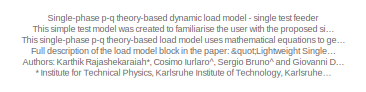
[diagram: root canvas - part 1/3, top left region]
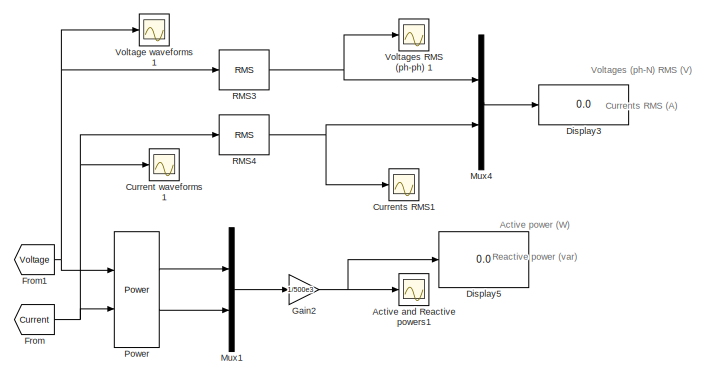
[diagram: root canvas - part 2/3, middle right region]
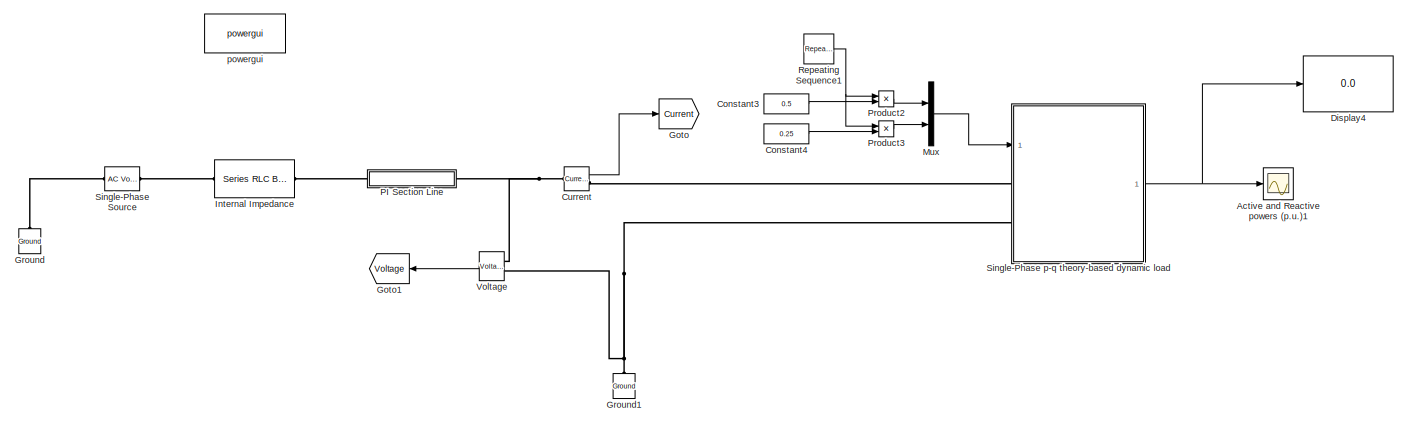
[diagram: root canvas - part 3/3, bottom left region]
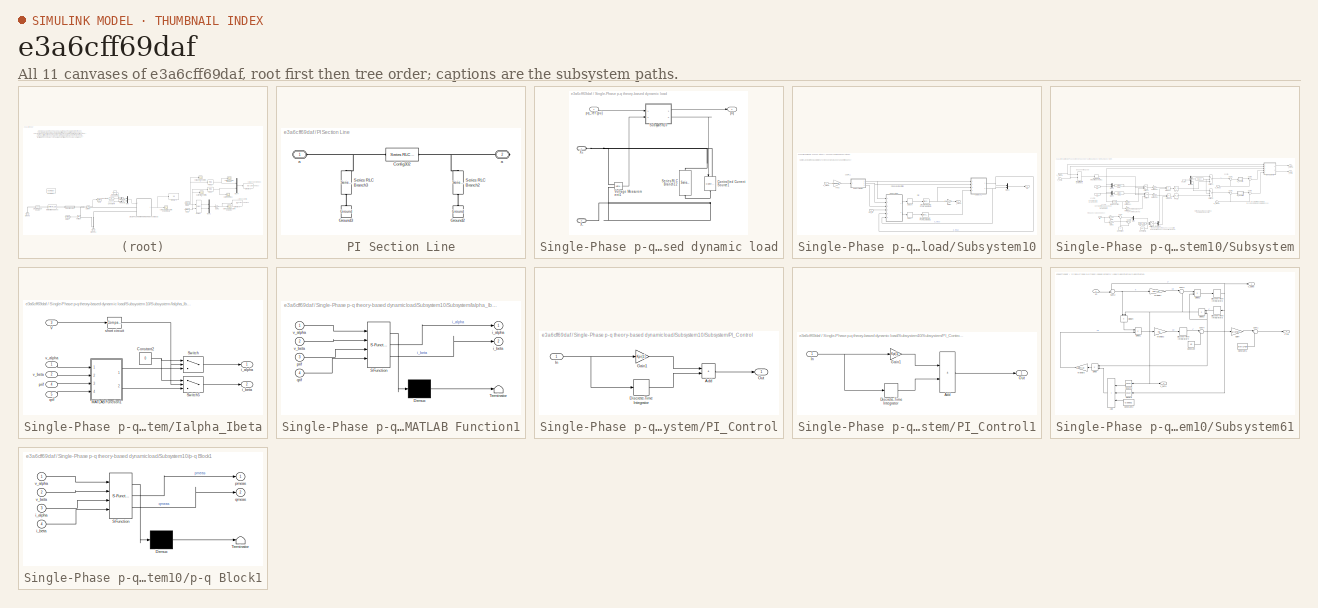
[diagram: thumbnail index - all 11 canvases of the model, root first then tree order]
MODEL slx_e3a6cff69daf
KIND model
CONFIG AbsTol = auto
CONFIG EnableMultiTasking = on
CONFIG FixedStep = 50e-6
CONFIG InitFcn = Ts = 50e-6; %time step
CONFIG MaxStep = auto
CONFIG MinStep = auto
CONFIG RelTol = 1e-3
CONFIG SampleTimeConstraint = Unconstrained
CONFIG SolverName = ode4
CONFIG StartTime = 0.0
CONFIG StopTime = 20
BLOCK [Scope] Active and Reactive powers (p.u.)1
  Floating = off
  NumInputPorts = 1
  Ports = [1]
  ScopeSpecificationString = Simulink.scopes.TimeScopeBlockCfg('CurrentConfiguration', extmgr.ConfigurationSet(extmgr.Configuration('Core','General UI',true),extmgr.Configuration('Core','Source UI',true),extmgr.Configuration('Sources','WiredSimulink',true,'DataLoggingVariableName','ScopeData1'),extmgr.Configuration('Visuals','Time Domain',true,'SerializedDisplays',{struct('MinYLimReal','-0.06887','MaxYLimReal','0.61923','YLab...<+1522ch>
BLOCK [Scope] Active and Reactive powers1
  Floating = off
  NumInputPorts = 1
  Ports = [1]
  ScopeSpecificationString = Simulink.scopes.TimeScopeBlockCfg('CurrentConfiguration', extmgr.ConfigurationSet(extmgr.Configuration('Core','General UI',true),extmgr.Configuration('Core','Source UI',true),extmgr.Configuration('Sources','WiredSimulink',true,'DataLoggingVariableName','ScopeData6'),extmgr.Configuration('Visuals','Time Domain',true,'SerializedDisplays',{struct('MinYLimReal','-0.06887','MaxYLimReal','0.61923','YLab...<+1450ch>
BLOCK [Constant] Constant3
  Value = 0.5
BLOCK [Constant] Constant4
  Value = 0.25
BLOCK [Reference] Current  REF=spsCurrentMeasurementLib/Current Measurement
  Ports = [0, 1, 0, 0, 0, 1, 1]
  SourceBlock = spsCurrentMeasurementLib/Current Measurement
  SourceProductBaseCode = PS
  SourceType = Current Measurement
  UserDataPersistent = on
BLOCK [Scope] Current waveforms1
  Floating = off
  NumInputPorts = 1
  Ports = [1]
  ScopeSpecificationString = Simulink.scopes.TimeScopeBlockCfg('CurrentConfiguration', extmgr.ConfigurationSet(extmgr.Configuration('Core','General UI',true),extmgr.Configuration('Core','Source UI',true),extmgr.Configuration('Sources','WiredSimulink',true,'DataLoggingVariableName','ScopeData2'),extmgr.Configuration('Visuals','Time Domain',true,'SerializedDisplays',{struct('MinYLimReal','-71.44279','MaxYLimReal','342.32777','Y...<+1376ch>
BLOCK [Scope] Currents RMS1
  Floating = off
  NumInputPorts = 1
  Ports = [1]
  ScopeSpecificationString = Simulink.scopes.TimeScopeBlockCfg('CurrentConfiguration', extmgr.ConfigurationSet(extmgr.Configuration('Core','General UI',true),extmgr.Configuration('Core','Source UI',true),extmgr.Configuration('Sources','WiredSimulink',true,'DataLoggingVariableName','ScopeData3'),extmgr.Configuration('Visuals','Time Domain',true,'SerializedDisplays',{struct('MinYLimReal','-6.88329','MaxYLimReal','61.9496','YLab...<+1437ch>
BLOCK [Display] Display3
  Decimation = 1
  Ports = [1]
BLOCK [Display] Display4
  Decimation = 1
  Ports = [1]
BLOCK [Display] Display5
  Decimation = 1
  Ports = [1]
BLOCK [From] From
  GotoTag = Current
BLOCK [From] From1
  GotoTag = Voltage
  NameLocation = top
BLOCK [Gain] Gain2
  Gain = 1/500e3
BLOCK [Goto] Goto
  GotoTag = Current
BLOCK [Goto] Goto1
  GotoTag = Voltage
  NameLocation = top
BLOCK [Reference] Ground  REF=spsGroundLib/Ground
  NameLocation = right
  Ports = [0, 0, 0, 0, 0, 1]
  SourceBlock = spsGroundLib/Ground
  SourceProductBaseCode = PS
  SourceType = Ground
BLOCK [Reference] Ground1  REF=spsGroundLib/Ground
  NameLocation = right
  Ports = [0, 0, 0, 0, 0, 1]
  SourceBlock = spsGroundLib/Ground
  SourceProductBaseCode = PS
  SourceType = Ground
BLOCK [Reference] Internal Impedance  REF=spsSeriesRLCBranchLib/Series RLC Branch
  Ports = [0, 0, 0, 0, 0, 1, 1]
  SourceBlock = spsSeriesRLCBranchLib/Series RLC Branch
  SourceProductBaseCode = PS
  SourceType = Series RLC Branch
BLOCK [Mux] Mux
  DisplayOption = bar
  Inputs = 2
  Ports = [2, 1]
BLOCK [Mux] Mux1
  DisplayOption = bar
  Inputs = 2
  Ports = [2, 1]
BLOCK [Mux] Mux4
  DisplayOption = bar
  Inputs = 2
  Ports = [2, 1]
BLOCK [SubSystem] PI Section Line
  Ports = [0, 0, 0, 0, 0, 1, 1]
  RequestExecContextInheritance = off
BLOCK [Reference] PI Section Line/Config302  REF=spsSeriesRLCBranchLib/Series RLC Branch
  Ports = [0, 0, 0, 0, 0, 1, 1]
  SourceBlock = spsSeriesRLCBranchLib/Series RLC Branch
  SourceProductBaseCode = PS
  SourceType = Series RLC Branch
BLOCK [Reference] PI Section Line/Ground2  REF=spsGroundLib/Ground
  NameLocation = right
  Ports = [0, 0, 0, 0, 0, 1]
  SourceBlock = spsGroundLib/Ground
  SourceProductBaseCode = PS
  SourceType = Ground
BLOCK [Reference] PI Section Line/Ground3  REF=spsGroundLib/Ground
  NameLocation = right
  Ports = [0, 0, 0, 0, 0, 1]
  SourceBlock = spsGroundLib/Ground
  SourceProductBaseCode = PS
  SourceType = Ground
BLOCK [Reference] PI Section Line/Series RLC Branch2  REF=spsSeriesRLCBranchLib/Series RLC Branch
  NameLocation = left
  Ports = [0, 0, 0, 0, 0, 1, 1]
  SourceBlock = spsSeriesRLCBranchLib/Series RLC Branch
  SourceProductBaseCode = PS
  SourceType = Series RLC Branch
BLOCK [Reference] PI Section Line/Series RLC Branch3  REF=spsSeriesRLCBranchLib/Series RLC Branch
  NameLocation = left
  Ports = [0, 0, 0, 0, 0, 1, 1]
  SourceBlock = spsSeriesRLCBranchLib/Series RLC Branch
  SourceProductBaseCode = PS
  SourceType = Series RLC Branch
BLOCK [PMIOPort] PI Section Line/a
  Side = Left
  Tag = PMCPort
BLOCK [PMIOPort] PI Section Line/a 
  NameLocation = top
  Port = 2
  Side = Right
  Tag = PMCPort
BLOCK [Reference] Power  REF=spsPowerLib/Power
  Ports = [2, 2]
  SourceBlock = spsPowerLib/Power
  SourceProductBaseCode = PS
  SourceType = Power
BLOCK [Product] Product2
  Ports = [2, 1]
BLOCK [Product] Product3
  Ports = [2, 1]
BLOCK [Reference] RMS3  REF=spsRMSLib/RMS
  Ports = [1, 1]
  SourceBlock = spsRMSLib/RMS
  SourceProductBaseCode = PS
  SourceType = RMS
BLOCK [Reference] RMS4  REF=spsRMSLib/RMS
  Ports = [1, 1]
  SourceBlock = spsRMSLib/RMS
  SourceProductBaseCode = PS
  SourceType = RMS
BLOCK [Reference] Repeating Sequence1  REF=simulink/Sources/Repeating
Sequence
  Ports = [0, 1]
  SourceBlock = simulink/Sources/Repeating\nSequence
  SourceProductBaseCode = SL
  SourceType = Repeating table
BLOCK [Reference] Single-Phase Source  REF=spsACVoltageSourceLib/AC Voltage Source
  Ports = [0, 0, 0, 0, 0, 1, 1]
  SourceBlock = spsACVoltageSourceLib/AC Voltage Source
  SourceProductBaseCode = PS
  SourceType = AC Voltage Source
BLOCK [SubSystem] Single-Phase p-q theory-based dynamic load
  AncestorBlock = LoadLib/SinglePhase_PQLoad
  Ports = [1, 1, 0, 0, 0, 2]
  RequestExecContextInheritance = off
BLOCK [Reference] Single-Phase p-q theory-based dynamic load/Controlled Current Source1  REF=spsControlledCurrentSourceLib/Controlled Current Source
  NameLocation = left
  Ports = [1, 0, 0, 0, 0, 1, 1]
  SourceBlock = spsControlledCurrentSourceLib/Controlled Current Source
  SourceProductBaseCode = PS
  SourceType = Controlled Current Source
BLOCK [Reference] Single-Phase p-q theory-based dynamic load/Series RLC Branch12  REF=spsSeriesRLCBranchLib/Series RLC Branch
  NameLocation = left
  Ports = [0, 0, 0, 0, 0, 1, 1]
  SourceBlock = spsSeriesRLCBranchLib/Series RLC Branch
  SourceProductBaseCode = PS
  SourceType = Series RLC Branch
BLOCK [SubSystem] Single-Phase p-q theory-based dynamic load/Subsystem10
  Ports = [2, 2]
  RequestExecContextInheritance = off
BLOCK [Delay] Single-Phase p-q theory-based dynamic load/Subsystem10/Delay6
  DelayLength = 1
  InitialCondition = 0
  InputPortMap = u0
  Ports = [1, 1]
BLOCK [Delay] Single-Phase p-q theory-based dynamic load/Subsystem10/Delay7
  DelayLength = 1
  InitialCondition = 0
  InputPortMap = u0
  Ports = [1, 1]
BLOCK [Reference] Single-Phase p-q theory-based dynamic load/Subsystem10/Discrete Transfer Fcn (with initial outputs)  REF=simulink_extras/Additional
Discrete/Discrete
Transfer Fcn
(with initial outputs)
  Ports = [1, 1]
  SourceBlock = simulink_extras/Additional\nDiscrete/Discrete\nTransfer Fcn\n(with initial outputs)
  SourceProductBaseCode = SL
  SourceType = Discrete Transfer Function with Initial Outputs
BLOCK [Reference] Single-Phase p-q theory-based dynamic load/Subsystem10/Discrete Transfer Fcn (with initial outputs)1  REF=simulink_extras/Additional
Discrete/Discrete
Transfer Fcn
(with initial outputs)
  Ports = [1, 1]
  SourceBlock = simulink_extras/Additional\nDiscrete/Discrete\nTransfer Fcn\n(with initial outputs)
  SourceProductBaseCode = SL
  SourceType = Discrete Transfer Function with Initial Outputs
BLOCK [Gain] Single-Phase p-q theory-based dynamic load/Subsystem10/Gain1
  Gain = BasePower/(Vbase/sqrt(2))
BLOCK [Mux] Single-Phase p-q theory-based dynamic load/Subsystem10/Mux3
  DisplayOption = bar
  Inputs = 2
  Ports = [2, 1]
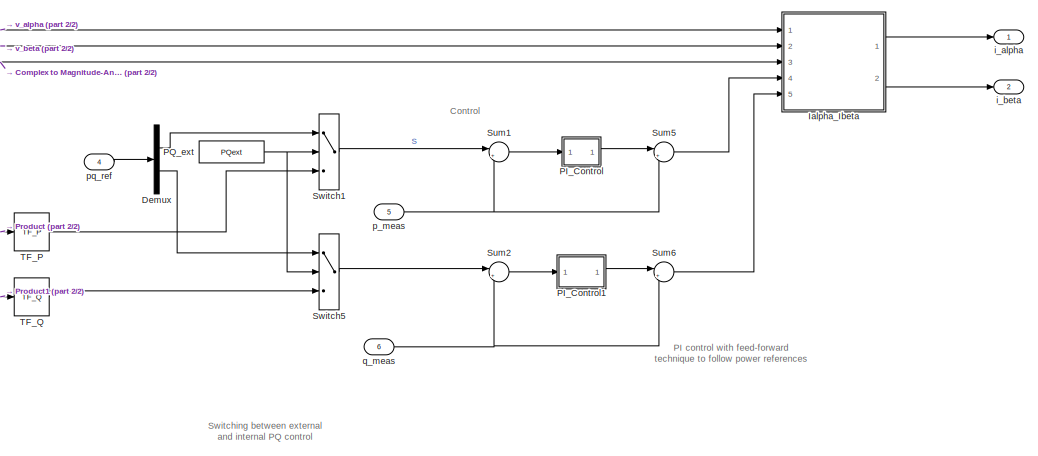
[diagram: Single-Phase p-q theory-based dynamic load/Subsystem10/Subsystem - part 1/2, middle right region]
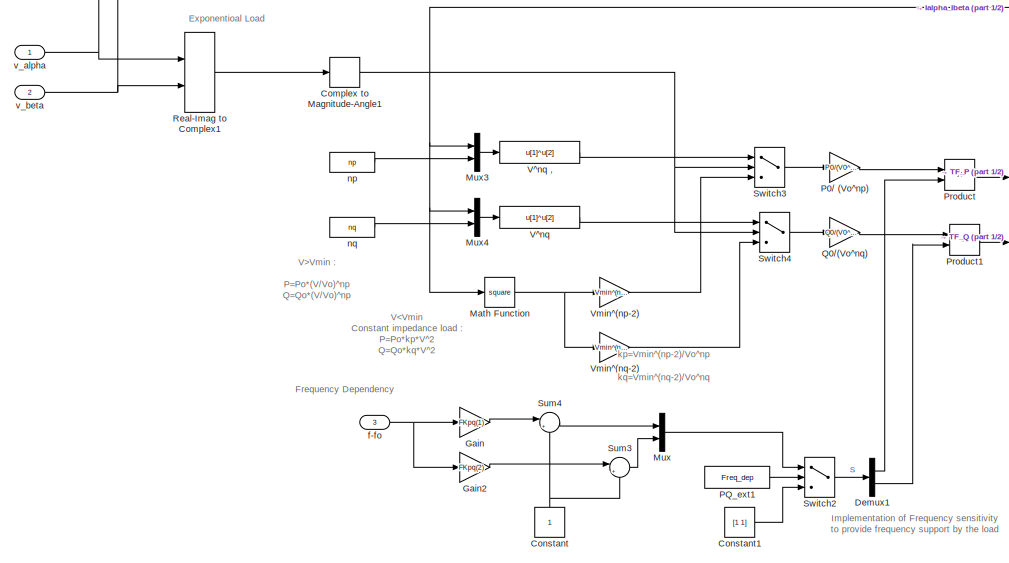
[diagram: Single-Phase p-q theory-based dynamic load/Subsystem10/Subsystem - part 2/2, left side, full height]
BLOCK [SubSystem] Single-Phase p-q theory-based dynamic load/Subsystem10/Subsystem
  Ports = [6, 2]
  RequestExecContextInheritance = off
BLOCK [ComplexToMagnitudeAngle] Single-Phase p-q theory-based dynamic load/Subsystem10/Subsystem/Complex to Magnitude-Angle1
  Output = Magnitude
  Ports = [1, 1]
BLOCK [Constant] Single-Phase p-q theory-based dynamic load/Subsystem10/Subsystem/Constant
  NameLocation = right
BLOCK [Constant] Single-Phase p-q theory-based dynamic load/Subsystem10/Subsystem/Constant1
  Value = [1 1]
BLOCK [Demux] Single-Phase p-q theory-based dynamic load/Subsystem10/Subsystem/Demux
  Outputs = 2
  Ports = [1, 2]
BLOCK [Demux] Single-Phase p-q theory-based dynamic load/Subsystem10/Subsystem/Demux1
  Outputs = 2
  Ports = [1, 2]
BLOCK [Gain] Single-Phase p-q theory-based dynamic load/Subsystem10/Subsystem/Gain
  Gain = FKpq(1)
BLOCK [Gain] Single-Phase p-q theory-based dynamic load/Subsystem10/Subsystem/Gain2
  Gain = FKpq(2)
BLOCK [SubSystem] Single-Phase p-q theory-based dynamic load/Subsystem10/Subsystem/Ialpha_Ibeta
  Ports = [5, 2]
  RequestExecContextInheritance = off
BLOCK [Constant] Single-Phase p-q theory-based dynamic load/Subsystem10/Subsystem/Ialpha_Ibeta/Constant2
  Value = 0
BLOCK [SubSystem] Single-Phase p-q theory-based dynamic load/Subsystem10/Subsystem/Ialpha_Ibeta/MATLAB Function1
  ErrorFcn = Stateflow.Translate.translate
  PermitHierarchicalResolution = ExplicitOnly
  Ports = [4, 2]
  RequestExecContextInheritance = off
  SFBlockType = MATLAB Function
  TreatAsAtomicUnit = on
BLOCK [Demux] Single-Phase p-q theory-based dynamic load/Subsystem10/Subsystem/Ialpha_Ibeta/MATLAB Function1/ Demux 
  Outputs = 1
  Ports = [1, 1]
BLOCK [S-Function] Single-Phase p-q theory-based dynamic load/Subsystem10/Subsystem/Ialpha_Ibeta/MATLAB Function1/ SFunction 
  EnableBusSupport = on
  FunctionName = sf_sfun
  PortCounts = [4 3]
  Ports = [4, 3]
  SFcnIsStateOwnerBlock = off
  SFunctionDeploymentMode = off
  Tag = Stateflow S-Function 3
BLOCK [Terminator] Single-Phase p-q theory-based dynamic load/Subsystem10/Subsystem/Ialpha_Ibeta/MATLAB Function1/ Terminator 
BLOCK [Outport] Single-Phase p-q theory-based dynamic load/Subsystem10/Subsystem/Ialpha_Ibeta/MATLAB Function1/i_alpha
BLOCK [Outport] Single-Phase p-q theory-based dynamic load/Subsystem10/Subsystem/Ialpha_Ibeta/MATLAB Function1/i_beta
  Port = 2
BLOCK [Inport] Single-Phase p-q theory-based dynamic load/Subsystem10/Subsystem/Ialpha_Ibeta/MATLAB Function1/prif
  Port = 3
BLOCK [Inport] Single-Phase p-q theory-based dynamic load/Subsystem10/Subsystem/Ialpha_Ibeta/MATLAB Function1/qrif
  Port = 4
BLOCK [Inport] Single-Phase p-q theory-based dynamic load/Subsystem10/Subsystem/Ialpha_Ibeta/MATLAB Function1/v_alpha
BLOCK [Inport] Single-Phase p-q theory-based dynamic load/Subsystem10/Subsystem/Ialpha_Ibeta/MATLAB Function1/v_beta
  Port = 2
BLOCK [Switch] Single-Phase p-q theory-based dynamic load/Subsystem10/Subsystem/Ialpha_Ibeta/Switch
  Criteria = u2 > Threshold
  InputSameDT = off
  SaturateOnIntegerOverflow = off
BLOCK [Switch] Single-Phase p-q theory-based dynamic load/Subsystem10/Subsystem/Ialpha_Ibeta/Switch5
  Criteria = u2 > Threshold
  InputSameDT = off
  SaturateOnIntegerOverflow = off
BLOCK [Inport] Single-Phase p-q theory-based dynamic load/Subsystem10/Subsystem/Ialpha_Ibeta/V
  Port = 3
BLOCK [Outport] Single-Phase p-q theory-based dynamic load/Subsystem10/Subsystem/Ialpha_Ibeta/i_alpha
BLOCK [Outport] Single-Phase p-q theory-based dynamic load/Subsystem10/Subsystem/Ialpha_Ibeta/i_beta
  Port = 2
BLOCK [Inport] Single-Phase p-q theory-based dynamic load/Subsystem10/Subsystem/Ialpha_Ibeta/prif
  NameLocation = left
  Port = 4
BLOCK [Inport] Single-Phase p-q theory-based dynamic load/Subsystem10/Subsystem/Ialpha_Ibeta/qrif
  NameLocation = left
  Port = 5
BLOCK [Reference] Single-Phase p-q theory-based dynamic load/Subsystem10/Subsystem/Ialpha_Ibeta/short circuit  REF=simulink/Logic and Bit
Operations/Compare
To Constant
  Ports = [1, 1]
  SourceBlock = simulink/Logic and Bit\nOperations/Compare\nTo Constant
  SourceProductBaseCode = SL
  SourceType = Compare To Constant
BLOCK [Inport] Single-Phase p-q theory-based dynamic load/Subsystem10/Subsystem/Ialpha_Ibeta/v_alpha
  NameLocation = left
BLOCK [Inport] Single-Phase p-q theory-based dynamic load/Subsystem10/Subsystem/Ialpha_Ibeta/v_beta
  NameLocation = left
  Port = 2
BLOCK [Math] Single-Phase p-q theory-based dynamic load/Subsystem10/Subsystem/Math Function
  Operator = square
  Ports = [1, 1]
  SignedPower = on
BLOCK [Mux] Single-Phase p-q theory-based dynamic load/Subsystem10/Subsystem/Mux
  DisplayOption = bar
  Inputs = 2
  Ports = [2, 1]
BLOCK [Mux] Single-Phase p-q theory-based dynamic load/Subsystem10/Subsystem/Mux3
  DisplayOption = bar
  Inputs = 2
  Ports = [2, 1]
BLOCK [Mux] Single-Phase p-q theory-based dynamic load/Subsystem10/Subsystem/Mux4
  DisplayOption = bar
  Inputs = 2
  Ports = [2, 1]
BLOCK [Gain] Single-Phase p-q theory-based dynamic load/Subsystem10/Subsystem/P0// (Vo^np)
  Gain = P0/(V0^np)
  OutDataTypeStr = Inherit: Same as input
  ParamDataTypeStr = Inherit: Same as input
  SaturateOnIntegerOverflow = on
BLOCK [SubSystem] Single-Phase p-q theory-based dynamic load/Subsystem10/Subsystem/PI_Control
  Ports = [1, 1]
  RequestExecContextInheritance = off
BLOCK [Sum] Single-Phase p-q theory-based dynamic load/Subsystem10/Subsystem/PI_Control/Add
  IconShape = rectangular
  Ports = [2, 1]
BLOCK [DiscreteIntegrator] Single-Phase p-q theory-based dynamic load/Subsystem10/Subsystem/PI_Control/Discrete-Time Integrator
  ICPrevOutput = DiscIntNeverNeededParam
  ICPrevScaledInput = DiscIntNeverNeededParam
  InitialConditionSetting = Auto
  Ports = [1, 1]
  SampleTime = -1
  gainval = Kpi(2)
BLOCK [Gain] Single-Phase p-q theory-based dynamic load/Subsystem10/Subsystem/PI_Control/Gain1
  Gain = Kpi(1)
BLOCK [Inport] Single-Phase p-q theory-based dynamic load/Subsystem10/Subsystem/PI_Control/In
BLOCK [Outport] Single-Phase p-q theory-based dynamic load/Subsystem10/Subsystem/PI_Control/Out
BLOCK [SubSystem] Single-Phase p-q theory-based dynamic load/Subsystem10/Subsystem/PI_Control1
  Ports = [1, 1]
  RequestExecContextInheritance = off
BLOCK [Sum] Single-Phase p-q theory-based dynamic load/Subsystem10/Subsystem/PI_Control1/Add
  IconShape = rectangular
  Ports = [2, 1]
BLOCK [DiscreteIntegrator] Single-Phase p-q theory-based dynamic load/Subsystem10/Subsystem/PI_Control1/Discrete-Time Integrator
  ICPrevOutput = DiscIntNeverNeededParam
  ICPrevScaledInput = DiscIntNeverNeededParam
  InitialConditionSetting = Auto
  Ports = [1, 1]
  SampleTime = -1
  gainval = Kpi(2)
BLOCK [Gain] Single-Phase p-q theory-based dynamic load/Subsystem10/Subsystem/PI_Control1/Gain1
  Gain = Kpi(1)
BLOCK [Inport] Single-Phase p-q theory-based dynamic load/Subsystem10/Subsystem/PI_Control1/In
BLOCK [Outport] Single-Phase p-q theory-based dynamic load/Subsystem10/Subsystem/PI_Control1/Out
BLOCK [Constant] Single-Phase p-q theory-based dynamic load/Subsystem10/Subsystem/PQ_ext
  Value = PQext
BLOCK [Constant] Single-Phase p-q theory-based dynamic load/Subsystem10/Subsystem/PQ_ext1
  Value = Freq_dep
BLOCK [Product] Single-Phase p-q theory-based dynamic load/Subsystem10/Subsystem/Product
  Ports = [2, 1]
BLOCK [Product] Single-Phase p-q theory-based dynamic load/Subsystem10/Subsystem/Product1
  Ports = [2, 1]
BLOCK [Gain] Single-Phase p-q theory-based dynamic load/Subsystem10/Subsystem/Q0//(Vo^nq)
  Gain = Q0/(V0^nq)
  OutDataTypeStr = Inherit: Same as input
  ParamDataTypeStr = Inherit: Same as input
  SaturateOnIntegerOverflow = on
BLOCK [RealImagToComplex] Single-Phase p-q theory-based dynamic load/Subsystem10/Subsystem/Real-Imag to Complex1
  Ports = [2, 1]
BLOCK [Sum] Single-Phase p-q theory-based dynamic load/Subsystem10/Subsystem/Sum1
  Inputs = |+-
  Ports = [2, 1]
BLOCK [Sum] Single-Phase p-q theory-based dynamic load/Subsystem10/Subsystem/Sum2
  Inputs = |+-
  Ports = [2, 1]
BLOCK [Sum] Single-Phase p-q theory-based dynamic load/Subsystem10/Subsystem/Sum3
  Inputs = |++
  Ports = [2, 1]
BLOCK [Sum] Single-Phase p-q theory-based dynamic load/Subsystem10/Subsystem/Sum4
  Inputs = |++
  Ports = [2, 1]
BLOCK [Sum] Single-Phase p-q theory-based dynamic load/Subsystem10/Subsystem/Sum5
  Inputs = |++
  Ports = [2, 1]
BLOCK [Sum] Single-Phase p-q theory-based dynamic load/Subsystem10/Subsystem/Sum6
  Inputs = |++
  Ports = [2, 1]
BLOCK [Switch] Single-Phase p-q theory-based dynamic load/Subsystem10/Subsystem/Switch1
  SaturateOnIntegerOverflow = off
  Threshold = 0.5
BLOCK [Switch] Single-Phase p-q theory-based dynamic load/Subsystem10/Subsystem/Switch2
  SaturateOnIntegerOverflow = off
  Threshold = 0.5
BLOCK [Switch] Single-Phase p-q theory-based dynamic load/Subsystem10/Subsystem/Switch3
  SaturateOnIntegerOverflow = off
  Threshold = Vmin
BLOCK [Switch] Single-Phase p-q theory-based dynamic load/Subsystem10/Subsystem/Switch4
  SaturateOnIntegerOverflow = off
  Threshold = Vmin
BLOCK [Switch] Single-Phase p-q theory-based dynamic load/Subsystem10/Subsystem/Switch5
  SaturateOnIntegerOverflow = off
  Threshold = 0.5
BLOCK [Reference] Single-Phase p-q theory-based dynamic load/Subsystem10/Subsystem/TF_P  REF=spsDynamicLoadModel/Discrete/Positive Sequence 
current/TF_P
  Ports = [1, 1]
  SourceBlock = spsDynamicLoadModel/Discrete/Positive Sequence \ncurrent/TF_P
  SourceProductBaseCode = PS
  SourceType = Discrete Lead-Lag Controller
BLOCK [Reference] Single-Phase p-q theory-based dynamic load/Subsystem10/Subsystem/TF_Q  REF=spsDynamicLoadModel/Discrete/Positive Sequence 
current/TF_Q
  Ports = [1, 1]
  SourceBlock = spsDynamicLoadModel/Discrete/Positive Sequence \ncurrent/TF_Q
  SourceProductBaseCode = PS
  SourceType = Discrete Lead-Lag Controller
BLOCK [Fcn] Single-Phase p-q theory-based dynamic load/Subsystem10/Subsystem/V^nq
  Expr = u[1]^u[2]
BLOCK [Fcn] Single-Phase p-q theory-based dynamic load/Subsystem10/Subsystem/V^nq ,
  Expr = u[1]^u[2]
BLOCK [Gain] Single-Phase p-q theory-based dynamic load/Subsystem10/Subsystem/Vmin^(np-2)
  Gain = Vmin^(np-2)
  OutDataTypeStr = Inherit: Same as input
  ParamDataTypeStr = Inherit: Same as input
  SaturateOnIntegerOverflow = on
BLOCK [Gain] Single-Phase p-q theory-based dynamic load/Subsystem10/Subsystem/Vmin^(nq-2)
  Gain = Vmin^(nq-2)
  OutDataTypeStr = Inherit: Same as input
  ParamDataTypeStr = Inherit: Same as input
  SaturateOnIntegerOverflow = on
BLOCK [Inport] Single-Phase p-q theory-based dynamic load/Subsystem10/Subsystem/f-fo
  Port = 3
BLOCK [Outport] Single-Phase p-q theory-based dynamic load/Subsystem10/Subsystem/i_alpha
BLOCK [Outport] Single-Phase p-q theory-based dynamic load/Subsystem10/Subsystem/i_beta
  Port = 2
BLOCK [Constant] Single-Phase p-q theory-based dynamic load/Subsystem10/Subsystem/np
  Value = np
BLOCK [Constant] Single-Phase p-q theory-based dynamic load/Subsystem10/Subsystem/nq
  Value = nq
BLOCK [Inport] Single-Phase p-q theory-based dynamic load/Subsystem10/Subsystem/p_meas
  Port = 5
BLOCK [Inport] Single-Phase p-q theory-based dynamic load/Subsystem10/Subsystem/pq_ref
  Port = 4
BLOCK [Inport] Single-Phase p-q theory-based dynamic load/Subsystem10/Subsystem/q_meas
  Port = 6
BLOCK [Inport] Single-Phase p-q theory-based dynamic load/Subsystem10/Subsystem/v_alpha
BLOCK [Inport] Single-Phase p-q theory-based dynamic load/Subsystem10/Subsystem/v_beta
  Port = 2
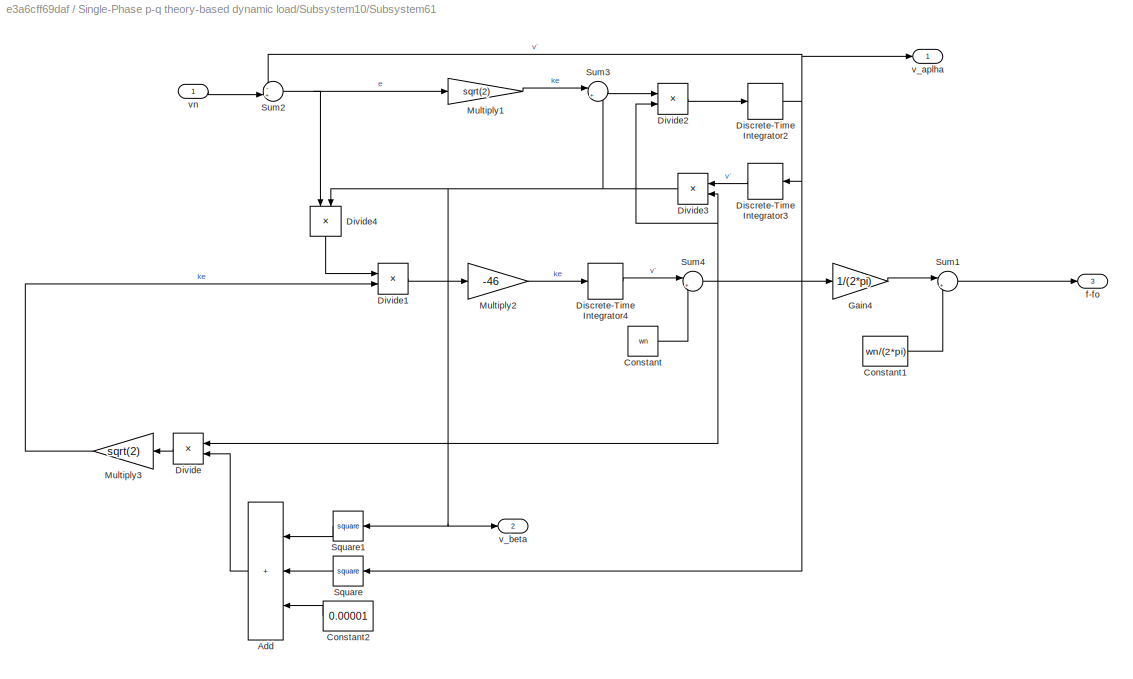
BLOCK [SubSystem] Single-Phase p-q theory-based dynamic load/Subsystem10/Subsystem61
  Ports = [1, 3]
  RequestExecContextInheritance = off
BLOCK [Sum] Single-Phase p-q theory-based dynamic load/Subsystem10/Subsystem61/Add
  IconShape = rectangular
  Inputs = +++
  NameLocation = top
  Ports = [3, 1]
BLOCK [Constant] Single-Phase p-q theory-based dynamic load/Subsystem10/Subsystem61/Constant
  Value = wn
BLOCK [Constant] Single-Phase p-q theory-based dynamic load/Subsystem10/Subsystem61/Constant1
  Value = wn/(2*pi)
BLOCK [Constant] Single-Phase p-q theory-based dynamic load/Subsystem10/Subsystem61/Constant2
  NameLocation = top
  Value = 0.00001
BLOCK [DiscreteIntegrator] Single-Phase p-q theory-based dynamic load/Subsystem10/Subsystem61/Discrete-Time Integrator2
  ICPrevOutput = DiscIntNeverNeededParam
  ICPrevScaledInput = DiscIntNeverNeededParam
  InitialConditionSetting = Auto
  Ports = [1, 1]
  SampleTime = -1
BLOCK [DiscreteIntegrator] Single-Phase p-q theory-based dynamic load/Subsystem10/Subsystem61/Discrete-Time Integrator3
  ICPrevOutput = DiscIntNeverNeededParam
  ICPrevScaledInput = DiscIntNeverNeededParam
  InitialConditionSetting = Auto
  IntegratorMethod = Integration: Backward Euler
  NameLocation = top
  Ports = [1, 1]
  SampleTime = -1
BLOCK [DiscreteIntegrator] Single-Phase p-q theory-based dynamic load/Subsystem10/Subsystem61/Discrete-Time Integrator4
  ICPrevOutput = DiscIntNeverNeededParam
  ICPrevScaledInput = DiscIntNeverNeededParam
  InitialConditionSetting = Auto
  Ports = [1, 1]
  SampleTime = -1
BLOCK [Product] Single-Phase p-q theory-based dynamic load/Subsystem10/Subsystem61/Divide
  Inputs = */
  NameLocation = top
  Ports = [2, 1]
BLOCK [Product] Single-Phase p-q theory-based dynamic load/Subsystem10/Subsystem61/Divide1
  Inputs = **
  Ports = [2, 1]
BLOCK [Product] Single-Phase p-q theory-based dynamic load/Subsystem10/Subsystem61/Divide2
  Inputs = **
  Ports = [2, 1]
BLOCK [Product] Single-Phase p-q theory-based dynamic load/Subsystem10/Subsystem61/Divide3
  Inputs = **
  NameLocation = top
  Ports = [2, 1]
BLOCK [Product] Single-Phase p-q theory-based dynamic load/Subsystem10/Subsystem61/Divide4
  Inputs = **
  NameLocation = left
  Ports = [2, 1]
BLOCK [Gain] Single-Phase p-q theory-based dynamic load/Subsystem10/Subsystem61/Gain4
  Gain = 1/(2*pi)
BLOCK [Gain] Single-Phase p-q theory-based dynamic load/Subsystem10/Subsystem61/Multiply1
  Gain = sqrt(2)
BLOCK [Gain] Single-Phase p-q theory-based dynamic load/Subsystem10/Subsystem61/Multiply2
  Gain = -46
BLOCK [Gain] Single-Phase p-q theory-based dynamic load/Subsystem10/Subsystem61/Multiply3
  Gain = sqrt(2)
  NameLocation = top
BLOCK [Math] Single-Phase p-q theory-based dynamic load/Subsystem10/Subsystem61/Square
  NameLocation = top
  Operator = square
  Ports = [1, 1]
BLOCK [Math] Single-Phase p-q theory-based dynamic load/Subsystem10/Subsystem61/Square1
  NameLocation = top
  Operator = square
  Ports = [1, 1]
BLOCK [Sum] Single-Phase p-q theory-based dynamic load/Subsystem10/Subsystem61/Sum1
  Inputs = |+-
  Ports = [2, 1]
BLOCK [Sum] Single-Phase p-q theory-based dynamic load/Subsystem10/Subsystem61/Sum2
  Inputs = -+|
  Ports = [2, 1]
BLOCK [Sum] Single-Phase p-q theory-based dynamic load/Subsystem10/Subsystem61/Sum3
  Inputs = |+-
  Ports = [2, 1]
BLOCK [Sum] Single-Phase p-q theory-based dynamic load/Subsystem10/Subsystem61/Sum4
  Inputs = |++
  Ports = [2, 1]
BLOCK [Outport] Single-Phase p-q theory-based dynamic load/Subsystem10/Subsystem61/f-fo
  Port = 3
BLOCK [Outport] Single-Phase p-q theory-based dynamic load/Subsystem10/Subsystem61/v_aplha
BLOCK [Outport] Single-Phase p-q theory-based dynamic load/Subsystem10/Subsystem61/v_beta
  Port = 2
BLOCK [Inport] Single-Phase p-q theory-based dynamic load/Subsystem10/Subsystem61/vn
BLOCK [Gain] Single-Phase p-q theory-based dynamic load/Subsystem10/V>pu
  Gain = 1/Vbase/sqrt(2)
BLOCK [Outport] Single-Phase p-q theory-based dynamic load/Subsystem10/i_alpha
  Port = 2
BLOCK [SubSystem] Single-Phase p-q theory-based dynamic load/Subsystem10/p-q Block1
  ErrorFcn = Stateflow.Translate.translate
  PermitHierarchicalResolution = ExplicitOnly
  Ports = [4, 2]
  RequestExecContextInheritance = off
  SFBlockType = MATLAB Function
  TreatAsAtomicUnit = on
BLOCK [Demux] Single-Phase p-q theory-based dynamic load/Subsystem10/p-q Block1/ Demux 
  Outputs = 1
  Ports = [1, 1]
BLOCK [S-Function] Single-Phase p-q theory-based dynamic load/Subsystem10/p-q Block1/ SFunction 
  EnableBusSupport = on
  FunctionName = sf_sfun
  PortCounts = [4 3]
  Ports = [4, 3]
  SFcnIsStateOwnerBlock = off
  SFunctionDeploymentMode = off
  Tag = Stateflow S-Function 4
BLOCK [Terminator] Single-Phase p-q theory-based dynamic load/Subsystem10/p-q Block1/ Terminator 
BLOCK [Inport] Single-Phase p-q theory-based dynamic load/Subsystem10/p-q Block1/i_alpha
  Port = 3
BLOCK [Inport] Single-Phase p-q theory-based dynamic load/Subsystem10/p-q Block1/i_beta
  Port = 4
BLOCK [Outport] Single-Phase p-q theory-based dynamic load/Subsystem10/p-q Block1/pmeas
BLOCK [Outport] Single-Phase p-q theory-based dynamic load/Subsystem10/p-q Block1/qmeas
  Port = 2
BLOCK [Inport] Single-Phase p-q theory-based dynamic load/Subsystem10/p-q Block1/v_alpha
BLOCK [Inport] Single-Phase p-q theory-based dynamic load/Subsystem10/p-q Block1/v_beta
  Port = 2
BLOCK [Outport] Single-Phase p-q theory-based dynamic load/Subsystem10/pq
BLOCK [Inport] Single-Phase p-q theory-based dynamic load/Subsystem10/pq_ref
BLOCK [Inport] Single-Phase p-q theory-based dynamic load/Subsystem10/v_alpha
  Port = 2
BLOCK [Reference] Single-Phase p-q theory-based dynamic load/Voltage Measurement1  REF=spsVoltageMeasurementLib/Voltage Measurement
  Ports = [0, 1, 0, 0, 0, 2]
  SourceBlock = spsVoltageMeasurementLib/Voltage Measurement
  SourceProductBaseCode = PS
  SourceType = Voltage Measurement
BLOCK [PMIOPort] Single-Phase p-q theory-based dynamic load/X+
  Side = Left
BLOCK [PMIOPort] Single-Phase p-q theory-based dynamic load/X-
  Port = 2
  Side = Left
BLOCK [Outport] Single-Phase p-q theory-based dynamic load/pq
BLOCK [Inport] Single-Phase p-q theory-based dynamic load/pq_ref (pu)
BLOCK [Reference] Voltage  REF=spsVoltageMeasurementLib/Voltage Measurement
  Ports = [0, 1, 0, 0, 0, 2]
  SourceBlock = spsVoltageMeasurementLib/Voltage Measurement
  SourceProductBaseCode = PS
  SourceType = Voltage Measurement
  UserDataPersistent = on
BLOCK [Scope] Voltage waveforms1
  Floating = off
  NumInputPorts = 1
  Ports = [1]
  ScopeSpecificationString = Simulink.scopes.TimeScopeBlockCfg('CurrentConfiguration', extmgr.ConfigurationSet(extmgr.Configuration('Core','General UI',true),extmgr.Configuration('Core','Source UI',true),extmgr.Configuration('Sources','WiredSimulink',true,'DataLoggingVariableName','ScopeData4'),extmgr.Configuration('Visuals','Time Domain',true,'SerializedDisplays',{struct('MinYLimReal','-25776.4993','MaxYLimReal','25780.38251...<+1424ch>
BLOCK [Scope] Voltages RMS (ph-ph) 1
  Floating = off
  NameLocation = right
  NumInputPorts = 1
  Ports = [1]
  ScopeSpecificationString = Simulink.scopes.TimeScopeBlockCfg('CurrentConfiguration', extmgr.ConfigurationSet(extmgr.Configuration('Core','General UI',true),extmgr.Configuration('Core','Source UI',true),extmgr.Configuration('Sources','WiredSimulink',true,'DataLoggingVariableName','ScopeData5'),extmgr.Configuration('Visuals','Time Domain',true,'SerializedDisplays',{struct('MinYLimReal','-2499.96387','MaxYLimReal','22499.67485...<+1428ch>
BLOCK [Reference] powergui  REF=spspowerguiLib/powergui
  Ports = []
  Priority = 1
  SourceBlock = spspowerguiLib/powergui
  SourceProductBaseCode = PS
  SourceType = PSB option menu block
ANNOTATION (root): Single-phase p-q theory-based dynamic load model - single test feeder This simple test model was created to familiarise the user with the proposed single-phase p-q theory-based load model. The load model was set up to follow externally supplied active and reactive power set-points. Step variations of the active and reactive power set-points were imposed to observe the response of the load model. T...<+905ch>
ANNOTATION (root): Active power (W)
ANNOTATION (root): Currents RMS (A)
ANNOTATION (root): Reactive power (var)
ANNOTATION (root): Voltages (ph-N) RMS (V)
ANNOTATION Single-Phase p-q theory-based dynamic load/Subsystem10: First-order Butterworth filters
ANNOTATION Single-Phase p-q theory-based dynamic load/Subsystem10: Filter
ANNOTATION Single-Phase p-q theory-based dynamic load/Subsystem10: SOGI-FLL
ANNOTATION Single-Phase p-q theory-based dynamic load/Subsystem10: SOGI-FLL to create the Quadrature Synchronous signals and change in frequency
ANNOTATION Single-Phase p-q theory-based dynamic load/Subsystem10/Subsystem: PI control with feed-forward technique to follow power references
ANNOTATION Single-Phase p-q theory-based dynamic load/Subsystem10/Subsystem: Implementation of Frequency sensitivity to provide frequency support by the load
ANNOTATION Single-Phase p-q theory-based dynamic load/Subsystem10/Subsystem: Switching between external and internal PQ control
ANNOTATION Single-Phase p-q theory-based dynamic load/Subsystem10/Subsystem: Control
ANNOTATION Single-Phase p-q theory-based dynamic load/Subsystem10/Subsystem: Exponentioal Load
ANNOTATION Single-Phase p-q theory-based dynamic load/Subsystem10/Subsystem: Frequency Dependency
ANNOTATION Single-Phase p-q theory-based dynamic load/Subsystem10/Subsystem: V<Vmin Constant impedance load : P=Po*kp*V^2 Q=Qo*kq*V^2
ANNOTATION Single-Phase p-q theory-based dynamic load/Subsystem10/Subsystem: V>Vmin : P=Po*(V/Vo)^np Q=Qo*(V/Vo)^np
ANNOTATION Single-Phase p-q theory-based dynamic load/Subsystem10/Subsystem: kp=Vmin^(np-2)/Vo^np kq=Vmin^(nq-2)/Vo^nq
LINE Constant3:1 -> Product2:2
LINE Constant4:1 -> Product3:2
LINE Current:1 -> Goto:1
NET From1:1 -> Power:1, RMS3:1, Voltage waveforms1:1
NET From:1 -> Current waveforms1:1, Power:2, RMS4:1
NET Gain2:1 -> Active and Reactive powers1:1, Display5:1
LINE Mux1:1 -> Gain2:1
LINE Mux4:1 -> Display3:1
LINE Mux:1 -> Single-Phase p-q theory-based dynamic load:1
LINE Power:1 -> Mux1:1
LINE Power:2 -> Mux1:2
LINE Product2:1 -> Mux:1
LINE Product3:1 -> Mux:2
NET RMS3:1 -> Mux4:1, Voltages RMS (ph-ph) 1:1
NET RMS4:1 -> Currents RMS1:1, Mux4:2
NET Repeating Sequence1:1 -> Product2:1, Product3:1
NET Single-Phase p-q theory-based dynamic load:1 -> Active and Reactive powers (p.u.)1:1, Display4:1
LINE Voltage:1 -> Goto1:1
PNET net1: Current:LConn1 -- PI Section Line:LConn1 -- Voltage:LConn1
PLINE Current:RConn1 -- Single-Phase p-q theory-based dynamic load:LConn1
PNET net2: Ground1:LConn1 -- Single-Phase p-q theory-based dynamic load:LConn2 -- Voltage:LConn2
PLINE Ground:LConn1 -- Single-Phase Source:LConn1
PLINE Internal Impedance:LConn1 -- Single-Phase Source:RConn1
PLINE Internal Impedance:RConn1 -- PI Section Line:RConn1
PNET net3: PI Section Line/Config302:LConn1 -- PI Section Line/Series RLC Branch3:LConn1 -- PI Section Line/a:RConn1
PNET net4: PI Section Line/Config302:RConn1 -- PI Section Line/Series RLC Branch2:LConn1 -- PI Section Line/a :RConn1
PLINE PI Section Line/Ground2:LConn1 -- PI Section Line/Series RLC Branch2:RConn1
PLINE PI Section Line/Ground3:LConn1 -- PI Section Line/Series RLC Branch3:RConn1
note: NET lines group one-source signal fan-out (src -> all destinations, sorted); 1:1 wires keep LINE; PNET lines group multi-terminal physical nets as a canonical sorted terminal list (undirected conserving connections); 2-terminal nets keep the pairwise PLINE form
CHART Single-Phase p-q theory-based
dynamic load/Subsystem10/Subsystem/Ialpha_Ibeta/MATLAB Function1 states=1 transitions=1
  STATE_LABEL 'eML_blk_kernel()'
  STATE_LABEL 'SCRIPT:\n\nfunction [i_alpha,i_beta]= fcn(v_alpha,v_beta,prif,qrif)\ni_alpha=(v_alpha.*prif+v_beta.*qrif)/(v_alpha.^2+v_beta.^2);\ni_beta=(v_beta.*prif-v_alpha.*qrif)/(v_alpha.^2+v_beta.^2);\n'
CHART Single-Phase p-q theory-based
dynamic load/Subsystem10/p-q Block1 states=1 transitions=1
  STATE_LABEL 'eML_blk_kernel()'
  STATE_LABEL 'SCRIPT:\nfunction [pmeas,qmeas]= fcn(v_alpha,v_beta,i_alpha,i_beta)\n\npmeas=v_alpha.*i_alpha+v_beta.*i_beta;\nqmeas=v_beta.*i_alpha-v_alpha.*i_beta;'
CHART  states=0 transitions=0
CHART  states=0 transitions=0
